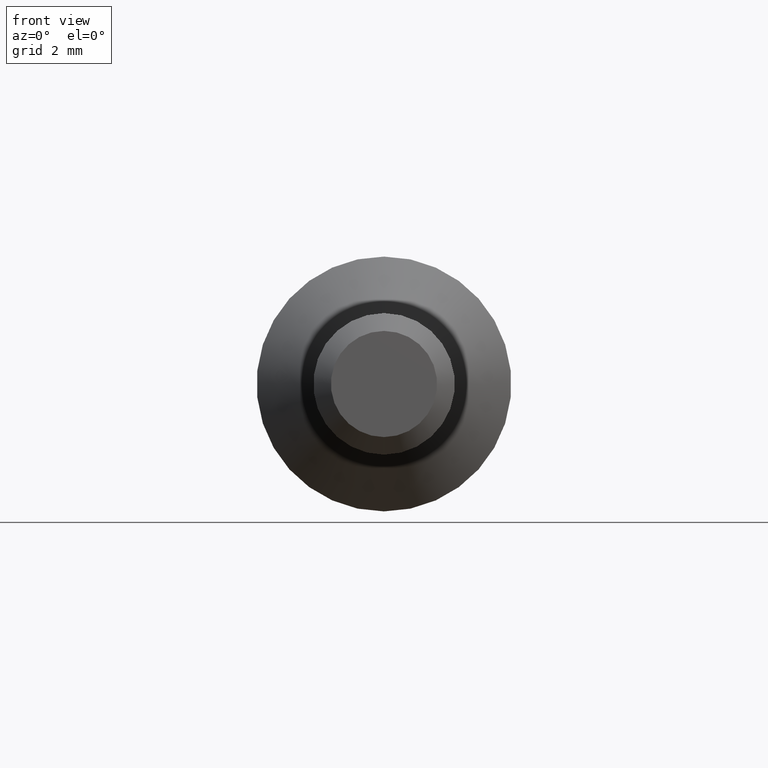
[diagram: clean part render]
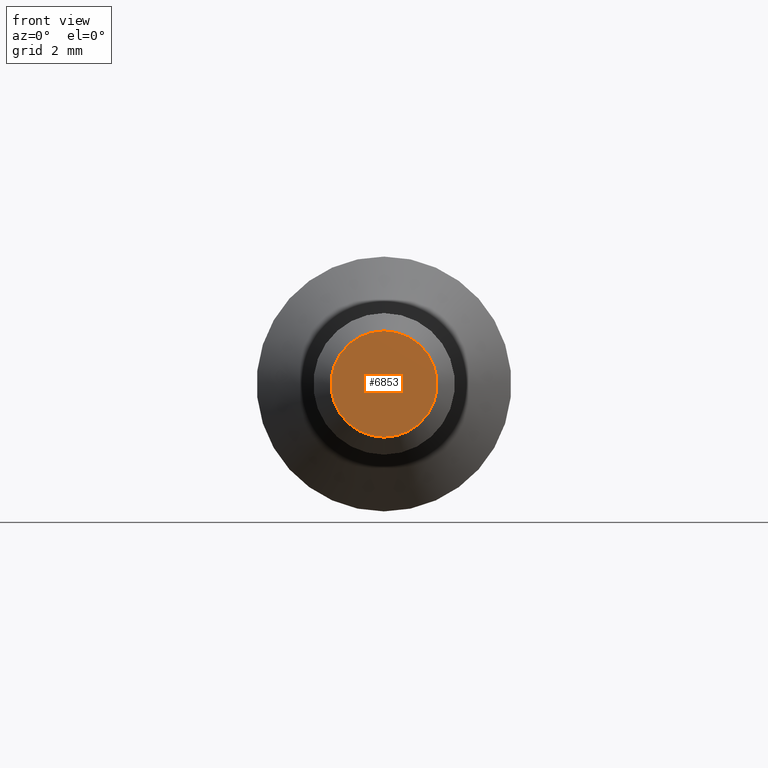
[diagram: same view with one face highlighted and labeled with its STEP entity id]
A machine part, front view. The second image highlights one B-rep face of the part: STEP entity #6853.
In plain terms, the highlighted planar face has unit normal (0, -1, -0).
Its self-contained STEP definition (entity closure, byte-faithful):
#170 = DIRECTION ( 'NONE',  ( 0.0000000000000000000, 0.0000000000000000000, -1.000000000000000000 ) ) ;
#1607 = CIRCLE ( 'NONE', #2907, 1.499999999999999600 ) ;
#2411 = CARTESIAN_POINT ( 'NONE',  ( 0.0000000000000000000, -3.061616997868383600E-017, 0.0000000000000000000 ) ) ;
#2907 = AXIS2_PLACEMENT_3D ( 'NONE', #2411, #13540, #11269 ) ;
#3469 = CARTESIAN_POINT ( 'NONE',  ( 2.000000000000000900, -3.061616997868383600E-017, 0.0000000000000000000 ) ) ;
#4443 = DIRECTION ( 'NONE',  ( 0.0000000000000000000, -1.000000000000000000, -0.0000000000000000000 ) ) ;
#4593 = PLANE ( 'NONE',  #12272 ) ;
#5513 = ORIENTED_EDGE ( 'NONE', *, *, #8349, .T. ) ;
#5524 = VERTEX_POINT ( 'NONE', #10308 ) ;
#6853 = ADVANCED_FACE ( 'NONE', ( #12882 ), #4593, .T. ) ;
#8349 = EDGE_CURVE ( 'NONE', #5524, #5524, #1607, .T. ) ;
#10308 = CARTESIAN_POINT ( 'NONE',  ( 0.0000000000000000000, -3.061616997868383600E-017, -1.499999999999999600 ) ) ;
#11269 = DIRECTION ( 'NONE',  ( 0.0000000000000000000, 0.0000000000000000000, -1.000000000000000000 ) ) ;
#12272 = AXIS2_PLACEMENT_3D ( 'NONE', #3469, #4443, #170 ) ;
#12882 = FACE_OUTER_BOUND ( 'NONE', #14157, .T. ) ;
#13540 = DIRECTION ( 'NONE',  ( -0.0000000000000000000, -1.000000000000000000, -0.0000000000000000000 ) ) ;
#14157 = EDGE_LOOP ( 'NONE', ( #5513 ) ) ;